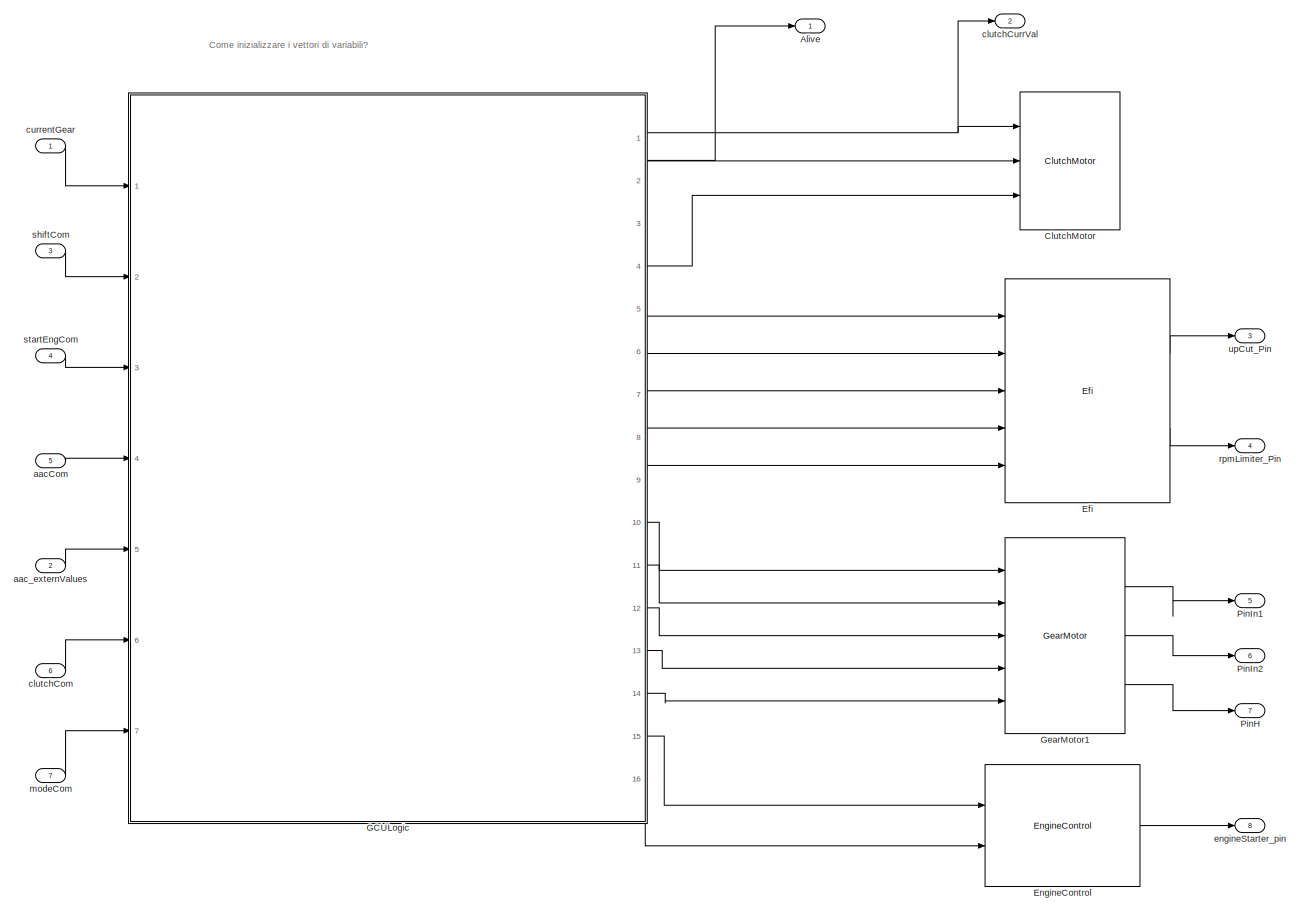
[diagram: root canvas - part 1/3, center side, full height]
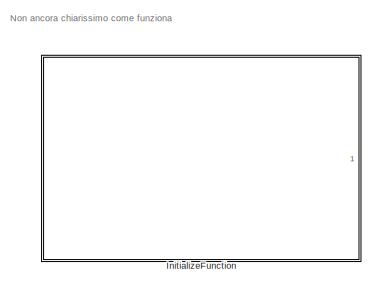
[diagram: root canvas - part 2/3, middle right region]
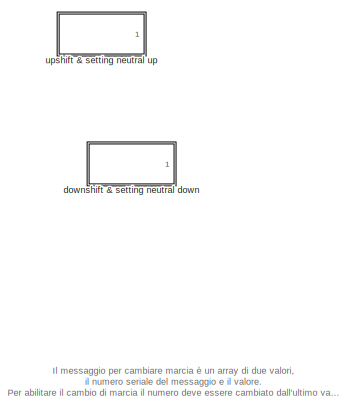
[diagram: root canvas - part 3/3, middle left region]
MODEL slx_0c3b50ac704f
KIND model
CONFIG AbsTol = auto
CONFIG EnableMultiTasking = off
CONFIG FixedStep = auto
CONFIG MaxStep = auto
CONFIG MinStep = auto
CONFIG RelTol = 1e-3
CONFIG SampleTimeConstraint = Unconstrained
CONFIG Solver = VariableStepAuto
CONFIG SolverName = VariableStepAuto
CONFIG StartTime = 0.0
CONFIG StopTime = 10.0
BLOCK [Outport] Alive
  IconDisplay = Port number
BLOCK [Reference] ClutchMotor  REF=clutchMotorLib/ClutchMotor
  Ports = [3]
  SourceBlock = clutchMotorLib/ClutchMotor
  SourceProductName = GCU Library
BLOCK [Reference] Efi  REF=efiLib/Efi
  Ports = [5, 2]
  SourceBlock = efiLib/Efi
  SourceProductName = GCU Library
  SourceType = SubSystem
BLOCK [Reference] EngineControl  REF=engineControlLib/EngineControl
  Ports = [2, 1]
  SourceBlock = engineControlLib/EngineControl
  SourceProductName = GCU Library
  SourceType = SubSystem
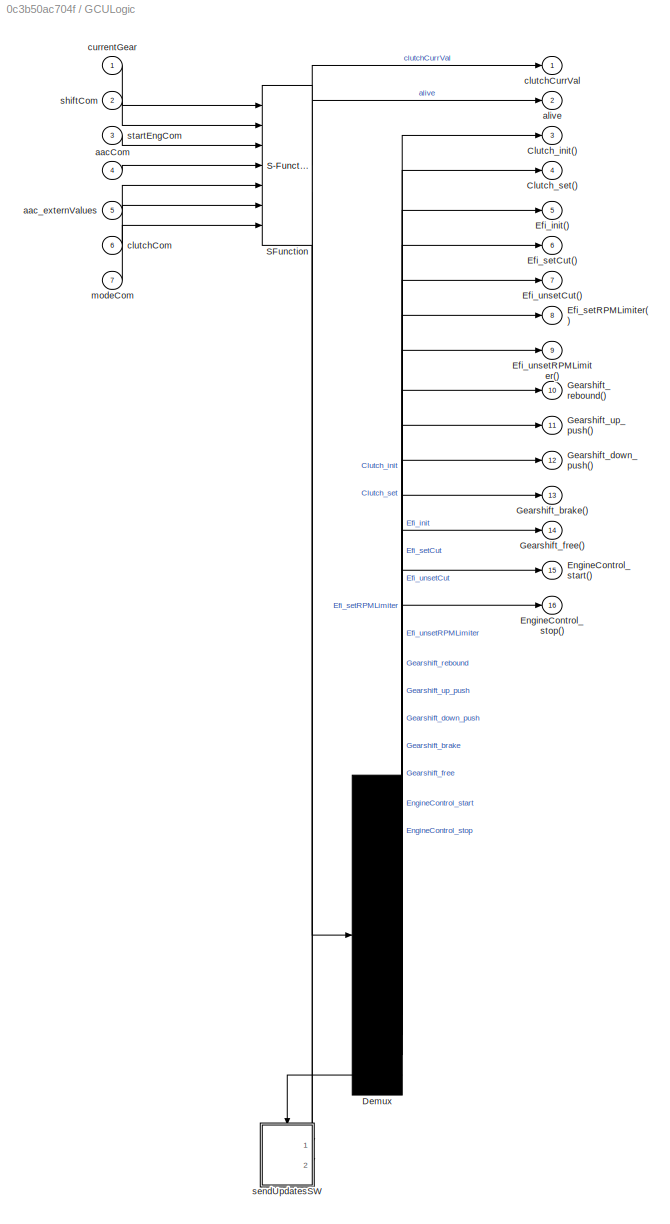
BLOCK [SubSystem] GCULogic
  ErrorFcn = Stateflow.Translate.translate
  PermitHierarchicalResolution = ExplicitOnly
  Ports = [7, 16]
  RequestExecContextInheritance = off
  SFBlockType = Chart
  TreatAsAtomicUnit = on
BLOCK [Demux] GCULogic/ Demux 
  Outputs = 15
  Ports = [1, 15]
BLOCK [S-Function] GCULogic/ SFunction 
  EnableBusSupport = on
  FunctionName = sf_sfun
  PortCounts = [7 5]
  Ports = [7, 5]
  SFcnIsStateOwnerBlock = off
  SFunctionDeploymentMode = off
  Tag = Stateflow S-Function GCU_timer 3
BLOCK [Outport] GCULogic/Clutch_init()
  IconDisplay = Port number
  Port = 3
BLOCK [Outport] GCULogic/Clutch_set()
  IconDisplay = Port number
  Port = 4
BLOCK [Outport] GCULogic/Efi_init()
  IconDisplay = Port number
  Port = 5
BLOCK [Outport] GCULogic/Efi_setCut()
  IconDisplay = Port number
  Port = 6
BLOCK [Outport] GCULogic/Efi_setRPMLimiter()
  IconDisplay = Port number
  Port = 8
BLOCK [Outport] GCULogic/Efi_unsetCut()
  IconDisplay = Port number
  Port = 7
BLOCK [Outport] GCULogic/Efi_unsetRPMLimiter()
  IconDisplay = Port number
  Port = 9
BLOCK [Outport] GCULogic/EngineControl_start()
  IconDisplay = Port number
  Port = 15
BLOCK [Outport] GCULogic/EngineControl_stop()
  IconDisplay = Port number
  Port = 16
BLOCK [Outport] GCULogic/Gearshift_brake()
  IconDisplay = Port number
  Port = 13
BLOCK [Outport] GCULogic/Gearshift_down_push()
  IconDisplay = Port number
  Port = 12
BLOCK [Outport] GCULogic/Gearshift_free()
  IconDisplay = Port number
  Port = 14
BLOCK [Outport] GCULogic/Gearshift_rebound()
  IconDisplay = Port number
  Port = 10
BLOCK [Outport] GCULogic/Gearshift_up_push()
  IconDisplay = Port number
  Port = 11
BLOCK [Inport] GCULogic/aacCom
  IconDisplay = Port number
  Port = 4
BLOCK [Inport] GCULogic/aac_externValues
  IconDisplay = Port number
  Port = 5
BLOCK [Outport] GCULogic/alive
  IconDisplay = Port number
  Port = 2
BLOCK [Inport] GCULogic/clutchCom
  IconDisplay = Port number
  Port = 6
BLOCK [Outport] GCULogic/clutchCurrVal
  IconDisplay = Port number
BLOCK [Inport] GCULogic/currentGear
  IconDisplay = Port number
BLOCK [Inport] GCULogic/modeCom
  IconDisplay = Port number
  Port = 7
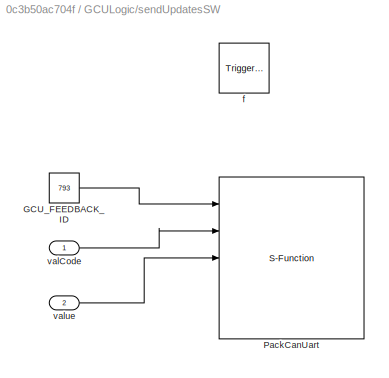
BLOCK [SubSystem] GCULogic/sendUpdatesSW
  Ports = [2, 0, 0, 1]
  PreDeleteFcn = Stateflow.SLINSF.SimulinkMan.removePreDeleteFcn
  RequestExecContextInheritance = off
  UndoDeleteFcn = Stateflow.SLINSF.SimulinkMan.restorePreDeleteFcn
BLOCK [Constant] GCULogic/sendUpdatesSW/GCU_FEEDBACK_ID
  OutDataTypeStr = uint16
  Value = 793
BLOCK [S-Function] GCULogic/sendUpdatesSW/PackCanUart
  EnableBusSupport = off
  FunctionName = PackCanUART
  Ports = [5, 1]
  SFcnIsStateOwnerBlock = off
  SFunctionDeploymentMode = off
BLOCK [TriggerPort] GCULogic/sendUpdatesSW/f
  CopyFcn = Stateflow.SLINSF.SimulinkMan.removeBlockPreDeleteFcn
  Ports = []
  PreDeleteFcn = Stateflow.SLINSF.SimulinkMan.unsafePredeleteFcn
  StatesWhenEnabling = held
  TriggerType = function-call
  VariantControl = (inherit)
BLOCK [Inport] GCULogic/sendUpdatesSW/valCode
  IconDisplay = Port number
  OutDataTypeStr = uint16
  PortDimensions = 1
  SignalType = real
  VarSizeSig = No
BLOCK [Inport] GCULogic/sendUpdatesSW/value
  IconDisplay = Port number
  OutDataTypeStr = uint16
  Port = 2
  PortDimensions = 1
  SignalType = real
  VarSizeSig = No
BLOCK [Inport] GCULogic/shiftCom
  IconDisplay = Port number
  Port = 2
BLOCK [Inport] GCULogic/startEngCom
  IconDisplay = Port number
  Port = 3
BLOCK [Reference] GearMotor1  REF=gearMotorLib/GearMotor
  Ports = [5, 3]
  SourceBlock = gearMotorLib/GearMotor
  SourceProductName = GCU Library
  SourceType = SubSystem
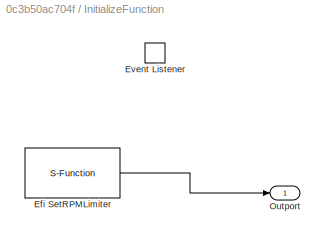
BLOCK [SubSystem] InitializeFunction
  Commented = on
  Ports = [0, 1]
  RequestExecContextInheritance = off
  TreatAsAtomicUnit = on
BLOCK [S-Function] InitializeFunction/Efi SetRPMLimiter
  EnableBusSupport = off
  FunctionName = Efi_setRPMLimiter
  Ports = [0, 1]
  SFcnIsStateOwnerBlock = off
  SFunctionDeploymentMode = off
BLOCK [EventListener] InitializeFunction/Event Listener
  DisableCoverage = on
  EventName = reset
BLOCK [Outport] InitializeFunction/Outport
  IconDisplay = Port number
BLOCK [Outport] PinH
  IconDisplay = Port number
  Port = 7
BLOCK [Outport] PinIn1
  IconDisplay = Port number
  Port = 5
BLOCK [Outport] PinIn2
  IconDisplay = Port number
  Port = 6
BLOCK [Inport] aacCom
  IconDisplay = Port number
  Port = 5
BLOCK [Inport] aac_externValues
  IconDisplay = Port number
  Port = 2
BLOCK [Inport] clutchCom
  IconDisplay = Port number
  Port = 6
BLOCK [Outport] clutchCurrVal
  IconDisplay = Port number
  Port = 2
BLOCK [Inport] currentGear
  IconDisplay = Port number
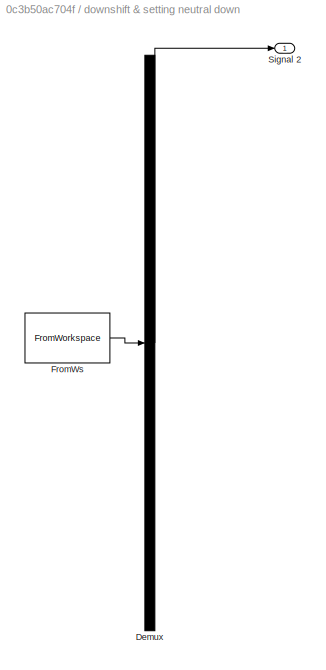
BLOCK [SubSystem] downshift & setting neutral down
  ClipboardFcn = sigbuilder_block('clipboard');
  CloseFcn = sigbuilder_block('close');
  ContinueFcn = sigbuilder_block('continue');
  CopyFcn = sigbuilder_block('copy');
  DeleteFcn = sigbuilder_block('delete');
  LoadFcn = sigbuilder_block('load');
  MaskHideContents = on
  ModelCloseFcn = sigbuilder_block('modelClose');
  NameChangeFcn = sigbuilder_block('namechange');
  OpenFcn = sigbuilder_block('open',[0 30 1024.5 488.25 ]);
  PauseFcn = sigbuilder_block('pause');
  Ports = [0, 1]
  PreSaveFcn = sigbuilder_block('preSave');
  RequestExecContextInheritance = off
  StartFcn = sigbuilder_block('start');
  StopFcn = sigbuilder_block('stop');
  Tag = STV Subsys
BLOCK [Demux] downshift & setting neutral down/Demux
  Outputs = 1
  Ports = [1, 1]
  Tag = STV Demux
BLOCK [FromWorkspace] downshift & setting neutral down/FromWs
  SampleTime = 0
  Tag = STV FromWs
  VariableName = tuvar
  ZeroCross = on
BLOCK [Outport] downshift & setting neutral down/Signal 2
  IconDisplay = Port number
  Tag = STV Outport
BLOCK [Outport] engineStarter_pin
  IconDisplay = Port number
  Port = 8
BLOCK [Inport] modeCom
  IconDisplay = Port number
  Port = 7
BLOCK [Outport] rpmLimiter_Pin
  IconDisplay = Port number
  Port = 4
BLOCK [Inport] shiftCom
  IconDisplay = Port number
  Port = 3
BLOCK [Inport] startEngCom
  IconDisplay = Port number
  Port = 4
BLOCK [Outport] upCut_Pin
  IconDisplay = Port number
  Port = 3
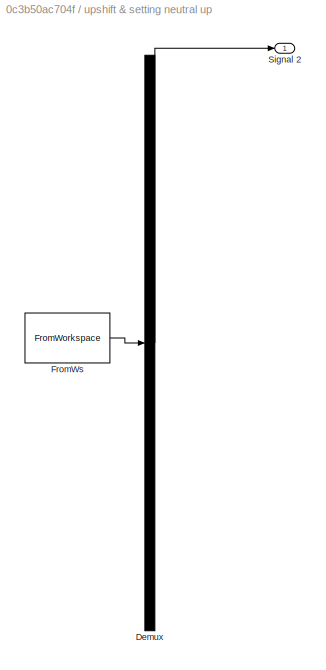
BLOCK [SubSystem] upshift & setting neutral up
  ClipboardFcn = sigbuilder_block('clipboard');
  CloseFcn = sigbuilder_block('close');
  ContinueFcn = sigbuilder_block('continue');
  CopyFcn = sigbuilder_block('copy');
  DeleteFcn = sigbuilder_block('delete');
  LoadFcn = sigbuilder_block('load');
  MaskHideContents = on
  ModelCloseFcn = sigbuilder_block('modelClose');
  NameChangeFcn = sigbuilder_block('namechange');
  OpenFcn = sigbuilder_block('open',[440.25 156.75 544.5 355.5 ]);
  PauseFcn = sigbuilder_block('pause');
  Ports = [0, 1]
  PreSaveFcn = sigbuilder_block('preSave');
  RequestExecContextInheritance = off
  StartFcn = sigbuilder_block('start');
  StopFcn = sigbuilder_block('stop');
  Tag = STV Subsys
BLOCK [Demux] upshift & setting neutral up/Demux
  Outputs = 1
  Ports = [1, 1]
  Tag = STV Demux
BLOCK [FromWorkspace] upshift & setting neutral up/FromWs
  SampleTime = 0
  Tag = STV FromWs
  VariableName = tuvar
  ZeroCross = on
BLOCK [Outport] upshift & setting neutral up/Signal 2
  IconDisplay = Port number
  Tag = STV Outport
ANNOTATION (root): Come inizializzare i vettori di variabili?
ANNOTATION (root): Il messaggio per cambiare marcia è un array di due valori, il numero seriale del messaggio e il valore. Per abilitare il cambio di marcia il numero deve essere cambiato dall'ultimo valore che ho memorizzato
ANNOTATION (root): Non ancora chiarissimo come funziona
LINE Efi:1 -> upCut_Pin:1
LINE Efi:2 -> rpmLimiter_Pin:1
LINE EngineControl:1 -> engineStarter_pin:1
NET GCULogic:1 -> ClutchMotor:1, clutchCurrVal:1
LINE GCULogic:10 -> GearMotor1:1
LINE GCULogic:11 -> GearMotor1:2
LINE GCULogic:12 -> GearMotor1:3
LINE GCULogic:13 -> GearMotor1:4
LINE GCULogic:14 -> GearMotor1:5
LINE GCULogic:15 -> EngineControl:1
LINE GCULogic:16 -> EngineControl:2
LINE GCULogic:2 -> Alive:1
LINE GCULogic:3 -> ClutchMotor:2
LINE GCULogic:4 -> ClutchMotor:3
LINE GCULogic:5 -> Efi:1
LINE GCULogic:6 -> Efi:2
LINE GCULogic:7 -> Efi:3
LINE GCULogic:8 -> Efi:4
LINE GCULogic:9 -> Efi:5
LINE GearMotor1:1 -> PinIn1:1
LINE GearMotor1:2 -> PinIn2:1
LINE GearMotor1:3 -> PinH:1
LINE InitializeFunction/Efi SetRPMLimiter:1 -> InitializeFunction/Outport:1
LINE aacCom:1 -> GCULogic:4
LINE aac_externValues:1 -> GCULogic:5
LINE clutchCom:1 -> GCULogic:6
LINE currentGear:1 -> GCULogic:1
LINE modeCom:1 -> GCULogic:7
LINE shiftCom:1 -> GCULogic:2
LINE startEngCom:1 -> GCULogic:3
note: NET lines group one-source signal fan-out (src -> all destinations, sorted); 1:1 wires keep LINE
CHART GCULogic states=78 transitions=153
  STATE_LABEL 'MODES'
  STATE_LABEL 'MANUAL_MODES\nentry:\n lastModeCom = modeCom(1);\nentry, during:\n alive = alive + 1;\n checkShift;\n checkClutch;\n'
  STATE_LABEL 'AUTOCROSS\n\n'
  STATE_LABEL 'ENDURANCE\n\n'
  STATE_LABEL 'SKIDPAD\n\n'
  STATE_LABEL 'INIT'
  STATE_LABEL 'numeri delle modalità da decidere'
  STATE_LABEL 'checkClutch'
  STATE_LABEL '[clutchCom(1) ~= lastClutchCom]'
  STATE_LABEL '[(~in(GEARSHIFT.DOWNSHIFTING) && ~in(NEUTRAL_STATE.SET_NEUTRAL)) || in(NEUTRAL_STATE.UNSET_NEUTRAL)]'
  STATE_LABEL '{lastClutchCom = clutchCom(1);\n Clutch_setValue(clutchCom(2));}'
  STATE_LABEL 'In caso di problema si riporta in endurance'
  STATE_LABEL 'checkShift'
  STATE_LABEL '[shiftCom(1) ~= lastShiftCom]'
  STATE_LABEL '{lastShiftCom = shiftCom(1);}'
  STATE_LABEL '[ shiftCom(2) == GEAR_COMMAND_UP]'
  STATE_LABEL '{send(GearshiftUp, NEUTRAL_STATE);\n send(GearshiftUp, GEARSHIFT);}'
  STATE_LABEL '[shiftCom(2) == GEAR_COMMAND_DOWN]'
  STATE_LABEL '{send(GearshiftDown, NEUTRAL_STATE);\n send(GearshiftDown, GEARSHIFT);}'
  STATE_LABEL '[shiftCom(2) == GEAR_COMMAND_NEUTRAL_UP]'
  STATE_LABEL '{send(GearshiftSetNeutral, NEUTRAL_STATE);\n send(GearshiftUp, GEARSHIFT);}'
  STATE_LABEL '[shiftCom(2) == GEAR_COMMAND_NEUTRAL_DOWN]'
  STATE_LABEL '{send(GearshiftSetNeutral, NEUTRAL_STATE);\n send(GearshiftDown, GEARSHIFT); }'
  STATE_LABEL 'ACCELERATION\nentry:\n lastModeCom = modeCom(1);'
  STATE_LABEL 'AAC'
  STATE_LABEL 'Ricorda load dei default parameters'
  STATE_LABEL 'Forse serve stato OFF, forse no'
  STATE_LABEL 'ATTENZIONE: mancano delle istruzioni in alcuni stati'
  STATE_LABEL "E' giusto che clutch venga settata due volte?"
  STATE_LABEL 'Riguarda funzionamento counter'
  STATE_LABEL 'ACTIVE'
  STATE_LABEL 'Quindi continuo a settare Clutch?'
  STATE_LABEL 'START\nentry:\n aacCounter = AAC_WORK_RATE_ms\n send(Efi_setRPMLimiter);\n Clutch_setValue(uint8(100));\n sendUpdatesSW(ACC_CODE, uint16(1));\nduring:\n aacCounter = aacCounter - 1;'
  STATE_LABEL 'READY\nentry:\n aacCounter = AAC_WORK_RATE_ms\n Clutch_setValue(uint8(100));\nduring:\n aacCounter = aacCounter - 1;\nen, du:\ncheckShift;'
  STATE_LABEL 'SET blip è sbagliato'
  STATE_LABEL 'START_RELEASE\nentry:\n aac_clutchValue = double(getAacParam(RAMP_START));\n Clutch_setValue(uint8(aac_clutchValue));\n aac_dtRelease = getAacParam(RAMP_TIME) / int32(AAC_WORK_RATE_ms);\n aac_clutchStep = double((getAacParam(RAMP_START) - getAacParam(RAMP_END)) * int32(AAC_WORK_RATE_ms)) / double(getAacParam(RAMP_TIME));\n aacCounter = AAC_WORK_RATE_ms;\n sendUpdatesSW(ACC_CODE, uint16(2));\nduring:\n aacC...<+24ch>'
  STATE_LABEL 'RUNNING\nentry:\n aacCounter = AAC_WORK_RATE_ms\n lastShift =  currentGear;\nentry, during:\n aacCheckShift;\n'
  STATE_LABEL 'Continuo a controllare ogni 25ms?'
  STATE_LABEL 'aacCheckShift'
  STATE_LABEL '[lastShift == currentGear]'
